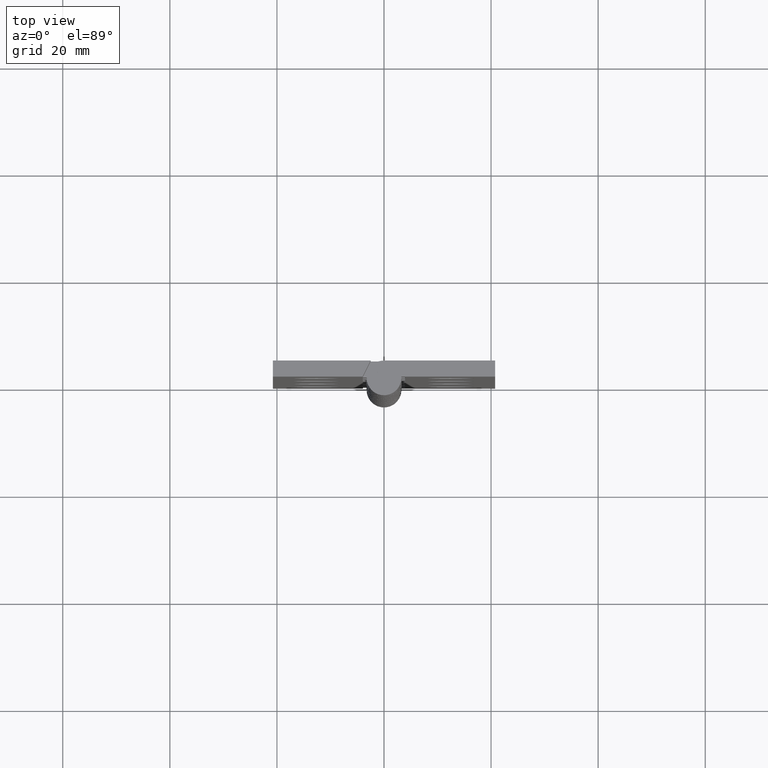
[diagram: clean part render]
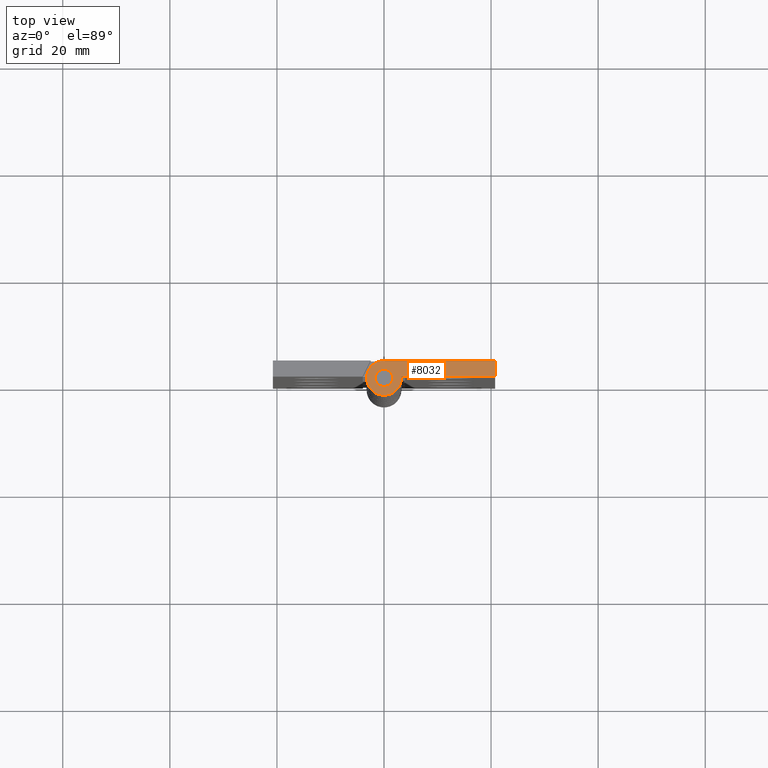
[diagram: same view with one face highlighted and labeled with its STEP entity id]
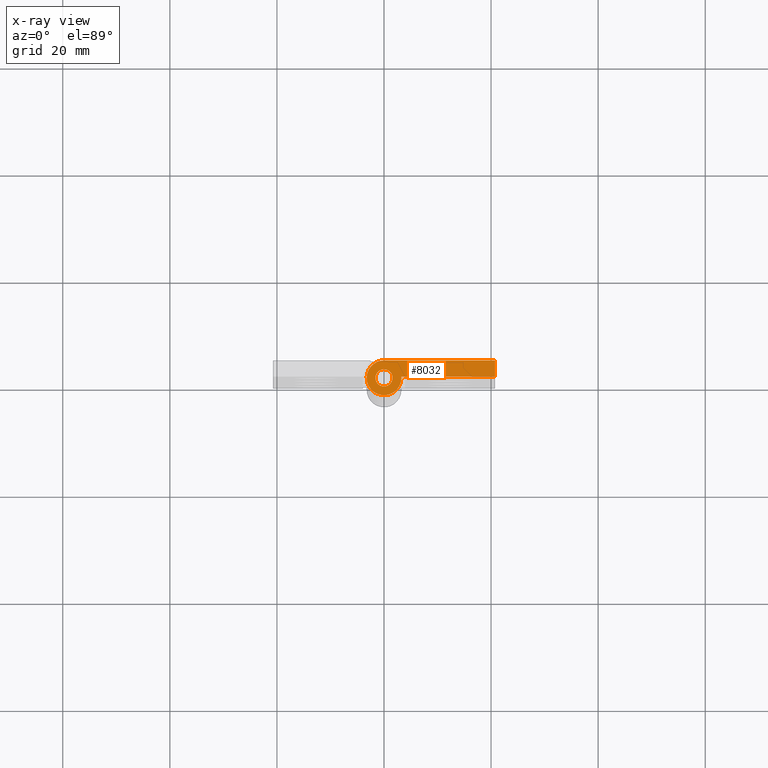
[diagram: x-ray of the same camera — body ghosted, the highlighted face saturated]
A machine part, top view. The second image highlights one B-rep face of the part: STEP entity #8032.
The next image is the same camera in x-ray: the body ghosted, the highlighted face saturated — about 0% of this face is hidden behind the body in this view.
In plain terms, the highlighted face is a freeform B-spline surface patch.
Its self-contained STEP definition (entity closure, byte-faithful):
#5625=CARTESIAN_POINT('',(0.125534554113351,-1.595067733898333,129.999991999999990));
#5626=VERTEX_POINT('',#5625);
#5632=CARTESIAN_POINT('',(1.600000000000000,0.0,129.999991999999990));
#5633=VERTEX_POINT('',#5632);
#5634=CARTESIAN_POINT('',(1.600000000000000,0.0,129.999991999999990));
#5635=CARTESIAN_POINT('',(1.599999999999999,-1.479024785770638,129.999991999999990));
#5636=CARTESIAN_POINT('',(0.125534554113351,-1.595067733898333,129.999992000000050));
#5644=(BOUNDED_CURVE()B_SPLINE_CURVE(2,(#5634,#5635,#5636),.UNSPECIFIED.,.F.,.U.)B_SPLINE_CURVE_WITH_KNOTS((3,3),(0.0,0.236331300530798),.UNSPECIFIED.)CURVE()GEOMETRIC_REPRESENTATION_ITEM()RATIONAL_B_SPLINE_CURVE((1.0,0.723120658724661,0.969723355959014))REPRESENTATION_ITEM(''));
#5645=EDGE_CURVE('',#5633,#5626,#5644,.T.);
#5647=CARTESIAN_POINT('',(-0.125534554113351,1.595067733898333,129.999991999999990));
#5648=VERTEX_POINT('',#5647);
#5649=CARTESIAN_POINT('',(-0.125534554113350,1.595067733898333,129.999992000000020));
#5650=CARTESIAN_POINT('',(-0.062864171688872,1.600000000000000,129.999991999999990));
#5651=CARTESIAN_POINT('',(0.0,1.600000000000000,129.999991999999990));
#5652=CARTESIAN_POINT('',(1.600000000000000,1.600000000000000,129.999992000000020));
#5653=CARTESIAN_POINT('',(1.600000000000000,0.0,129.999991999999990));
#5661=(BOUNDED_CURVE()B_SPLINE_CURVE(2,(#5649,#5650,#5651,#5652,#5653),.UNSPECIFIED.,.F.,.U.)B_SPLINE_CURVE_WITH_KNOTS((3,2,3),(0.736331300530798,0.750000000000000,1.0),.UNSPECIFIED.)CURVE()GEOMETRIC_REPRESENTATION_ITEM()RATIONAL_B_SPLINE_CURVE((0.969723355959014,0.983986122461887,1.0,0.707106781186548,1.0))REPRESENTATION_ITEM(''));
#5662=EDGE_CURVE('',#5648,#5633,#5661,.T.);
#5738=CARTESIAN_POINT('',(-1.600000000000000,0.0,129.999991999999990));
#5739=VERTEX_POINT('',#5738);
#5740=CARTESIAN_POINT('',(-1.600000000000000,0.0,129.999991999999990));
#5741=CARTESIAN_POINT('',(-1.600000000000000,1.479024785770638,129.999992000000020));
#5742=CARTESIAN_POINT('',(-0.125534554113350,1.595067733898333,129.999992000000020));
#5750=(BOUNDED_CURVE()B_SPLINE_CURVE(2,(#5740,#5741,#5742),.UNSPECIFIED.,.F.,.U.)B_SPLINE_CURVE_WITH_KNOTS((3,3),(0.500000000000000,0.736331300530798),.UNSPECIFIED.)CURVE()GEOMETRIC_REPRESENTATION_ITEM()RATIONAL_B_SPLINE_CURVE((1.0,0.723120658724661,0.969723355959014))REPRESENTATION_ITEM(''));
#5751=EDGE_CURVE('',#5739,#5648,#5750,.T.);
#5753=CARTESIAN_POINT('',(0.125534554113351,-1.595067733898333,129.999992000000050));
#5754=CARTESIAN_POINT('',(0.062864171688873,-1.600000000000000,129.999992000000020));
#5755=CARTESIAN_POINT('',(0.0,-1.600000000000000,129.999991999999990));
#5756=CARTESIAN_POINT('',(-1.600000000000000,-1.600000000000000,129.999992000000020));
#5757=CARTESIAN_POINT('',(-1.600000000000000,0.0,129.999991999999990));
#5765=(BOUNDED_CURVE()B_SPLINE_CURVE(2,(#5753,#5754,#5755,#5756,#5757),.UNSPECIFIED.,.F.,.U.)B_SPLINE_CURVE_WITH_KNOTS((3,2,3),(0.236331300530798,0.250000000000000,0.500000000000000),.UNSPECIFIED.)CURVE()GEOMETRIC_REPRESENTATION_ITEM()RATIONAL_B_SPLINE_CURVE((0.969723355959014,0.983986122461887,1.0,0.707106781186548,1.0))REPRESENTATION_ITEM(''));
#5766=EDGE_CURVE('',#5626,#5739,#5765,.T.);
#7940=CARTESIAN_POINT('',(20.750000000000000,0.250002000000000,129.999991999999990));
#7941=VERTEX_POINT('',#7940);
#7942=CARTESIAN_POINT('',(20.750000000000000,3.250002000000000,129.999991999999990));
#7943=VERTEX_POINT('',#7942);
#7944=CARTESIAN_POINT('',(20.750000000000000,0.250002000000000,129.999991999999990));
#7945=CARTESIAN_POINT('',(20.750000000000000,3.250002000000000,129.999991999999990));
#7946=QUASI_UNIFORM_CURVE('',1,(#7944,#7945),.UNSPECIFIED.,.F.,.U.);
#7947=EDGE_CURVE('',#7941,#7943,#7946,.T.);
#7971=CARTESIAN_POINT('',(-4.448802041869651,-3.574677234808383,129.999991999999990));
#7972=CARTESIAN_POINT('',(21.948800696315729,-3.574677234808383,129.999991999999990));
#7973=CARTESIAN_POINT('',(-4.448802041869651,3.574677363560173,129.999991999999990));
#7974=CARTESIAN_POINT('',(21.948800696315729,3.574677363560173,129.999991999999990));
#7975=B_SPLINE_SURFACE_WITH_KNOTS('',1,1,((#7971,#7973),(#7972,#7974)),.UNSPECIFIED.,.F.,.F.,.U.,(2,2),(2,2),(0.0,26.397602738185380),(0.0,7.149354598368557),.UNSPECIFIED.);
#7976=ORIENTED_EDGE('',*,*,#7947,.T.);
#7977=CARTESIAN_POINT('',(0.0,3.250002000000000,129.999991999999990));
#7978=VERTEX_POINT('',#7977);
#7979=CARTESIAN_POINT('',(20.750000000000000,3.250002000000000,129.999991999999990));
#7980=CARTESIAN_POINT('',(0.0,3.250002000000000,129.999991999999990));
#7981=QUASI_UNIFORM_CURVE('',1,(#7979,#7980),.UNSPECIFIED.,.F.,.U.);
#7982=EDGE_CURVE('',#7943,#7978,#7981,.T.);
#7983=ORIENTED_EDGE('',*,*,#7982,.T.);
#7984=CARTESIAN_POINT('',(3.250002000000000,0.0,129.999991999999990));
#7985=VERTEX_POINT('',#7984);
#7986=CARTESIAN_POINT('',(3.250002000000000,0.0,129.999991999999990));
#7987=CARTESIAN_POINT('',(3.250126541722850,-0.299119722925987,129.999992000000110));
#7988=CARTESIAN_POINT('',(3.186197574069851,-0.757699251531633,129.999991999999990));
#7989=CARTESIAN_POINT('',(2.946400268119132,-1.415196659680788,129.999991999999990));
#7990=CARTESIAN_POINT('',(2.599350185887110,-2.002525152513127,129.999992000000190));
#7991=CARTESIAN_POINT('',(2.093768571570589,-2.520616741313822,129.999991999999910));
#7992=CARTESIAN_POINT('',(1.506173649387451,-2.902809131635596,129.999991999999710));
#7993=CARTESIAN_POINT('',(0.836997744517684,-3.172911026107978,129.999992000000300));
#7994=CARTESIAN_POINT('',(0.099854855614900,-3.279903515339398,129.999992000000700));
#7995=CARTESIAN_POINT('',(-0.658352653947962,-3.207508463732577,129.999991999998600));
#7996=CARTESIAN_POINT('',(-1.251255185720932,-3.019682219946772,129.999992000000700));
#7997=CARTESIAN_POINT('',(-1.833224422317379,-2.708625678912956,129.999991999999910));
#7998=CARTESIAN_POINT('',(-2.331329212527613,-2.302423923799751,129.999992000000190));
#7999=CARTESIAN_POINT('',(-2.752226277715315,-1.766394148818207,129.999992000000110));
#8000=CARTESIAN_POINT('',(-3.080388055418496,-1.124417290567918,129.999991999999990));
#8001=CARTESIAN_POINT('',(-3.278595046428000,-0.323149294122056,129.999992000000110));
#8002=CARTESIAN_POINT('',(-3.241277538660847,0.542849693962500,129.999991999999990));
#8003=CARTESIAN_POINT('',(-3.009471734798527,1.290185554690569,129.999992000000390));
#8004=CARTESIAN_POINT('',(-2.626328112624008,1.971588136563843,129.999991999997290));
#8005=CARTESIAN_POINT('',(-2.028648254991396,2.599494082073933,129.999992000005790));
#8006=CARTESIAN_POINT('',(-1.116531277858881,3.116148526395587,129.999991999993110));
#8007=CARTESIAN_POINT('',(-0.398864664119787,3.250321222643124,129.999992000005590));
#8008=CARTESIAN_POINT('',(0.0,3.250002000000000,129.999991999999990));
#8009=B_SPLINE_CURVE_WITH_KNOTS('',3,(#7986,#7987,#7988,#7989,#7990,#7991,#7992,#7993,#7994,#7995,#7996,#7997,#7998,#7999,#8000,#8001,#8002,#8003,#8004,#8005,#8006,#8007,#8008),.UNSPECIFIED.,.F.,.U.,(4,1,1,1,1,1,1,1,1,1,1,1,1,1,1,1,1,1,1,1,4),(0.000000900584890,0.897318631712899,1.375992129447301,2.093900663776164,2.931496390251940,3.529787072808482,4.187902412925640,5.085294728259846,5.743301267278270,6.461170030126993,6.939831677601783,7.717575318248597,8.375695493262104,8.973980995145013,9.871396629287062,10.828505386619740,11.546389729966560,12.204517336434190,13.161752748301369,14.118989412042550,15.315489814298481),.UNSPECIFIED.);
#8010=EDGE_CURVE('',#7985,#7978,#8009,.T.);
#8011=ORIENTED_EDGE('',*,*,#8010,.F.);
#8012=CARTESIAN_POINT('',(3.250002000000000,0.250002000000000,129.999991999999990));
#8013=VERTEX_POINT('',#8012);
#8014=CARTESIAN_POINT('',(3.250002000000000,0.0,129.999991999999990));
#8015=CARTESIAN_POINT('',(3.250002000000000,0.250002000000000,129.999991999999990));
#8016=QUASI_UNIFORM_CURVE('',1,(#8014,#8015),.UNSPECIFIED.,.F.,.U.);
#8017=EDGE_CURVE('',#7985,#8013,#8016,.T.);
#8018=ORIENTED_EDGE('',*,*,#8017,.T.);
#8019=CARTESIAN_POINT('',(3.250002000000000,0.250002000000000,129.999991999999990));
#8020=CARTESIAN_POINT('',(20.750000000000000,0.250002000000000,129.999991999999990));
#8021=QUASI_UNIFORM_CURVE('',1,(#8019,#8020),.UNSPECIFIED.,.F.,.U.);
#8022=EDGE_CURVE('',#8013,#7941,#8021,.T.);
#8023=ORIENTED_EDGE('',*,*,#8022,.T.);
#8024=EDGE_LOOP('',(#7976,#7983,#8011,#8018,#8023));
#8025=FACE_OUTER_BOUND('',#8024,.T.);
#8026=ORIENTED_EDGE('',*,*,#5751,.T.);
#8027=ORIENTED_EDGE('',*,*,#5662,.T.);
#8028=ORIENTED_EDGE('',*,*,#5645,.T.);
#8029=ORIENTED_EDGE('',*,*,#5766,.T.);
#8030=EDGE_LOOP('',(#8026,#8027,#8028,#8029));
#8031=FACE_BOUND('',#8030,.T.);
#8032=ADVANCED_FACE('',(#8025,#8031),#7975,.T.);